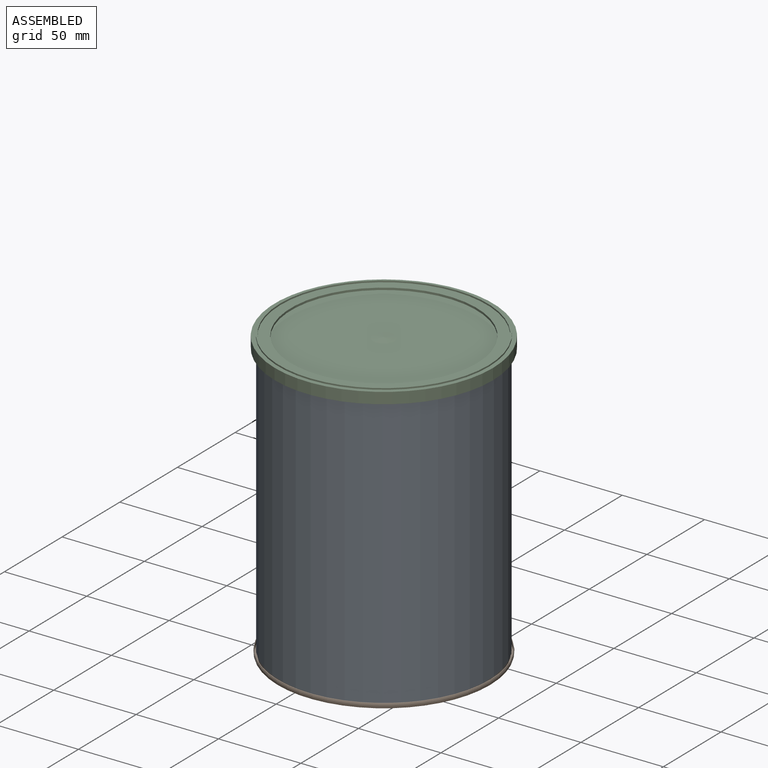
[diagram: assembled view]
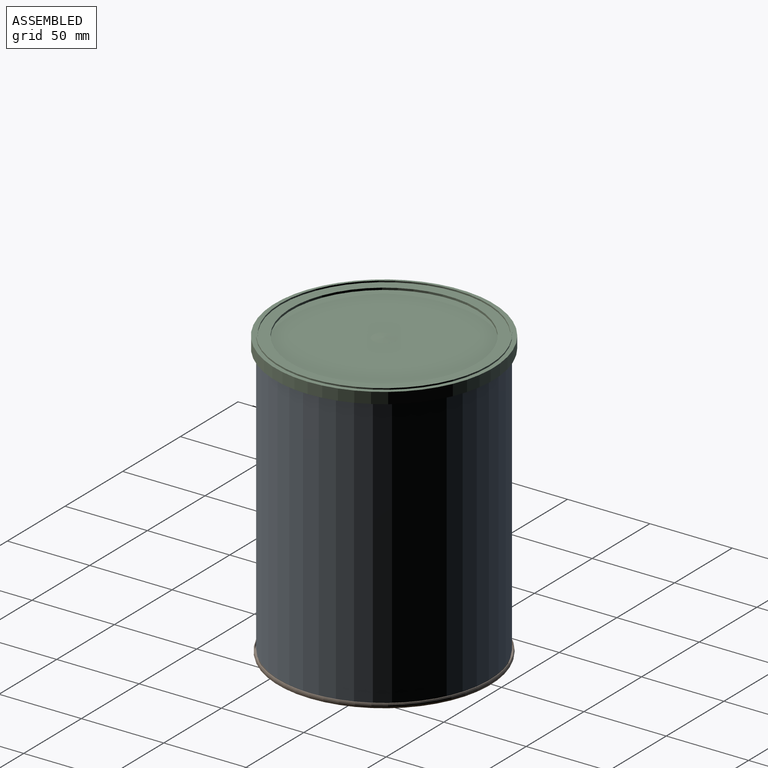
[diagram: assembled view, second angle]
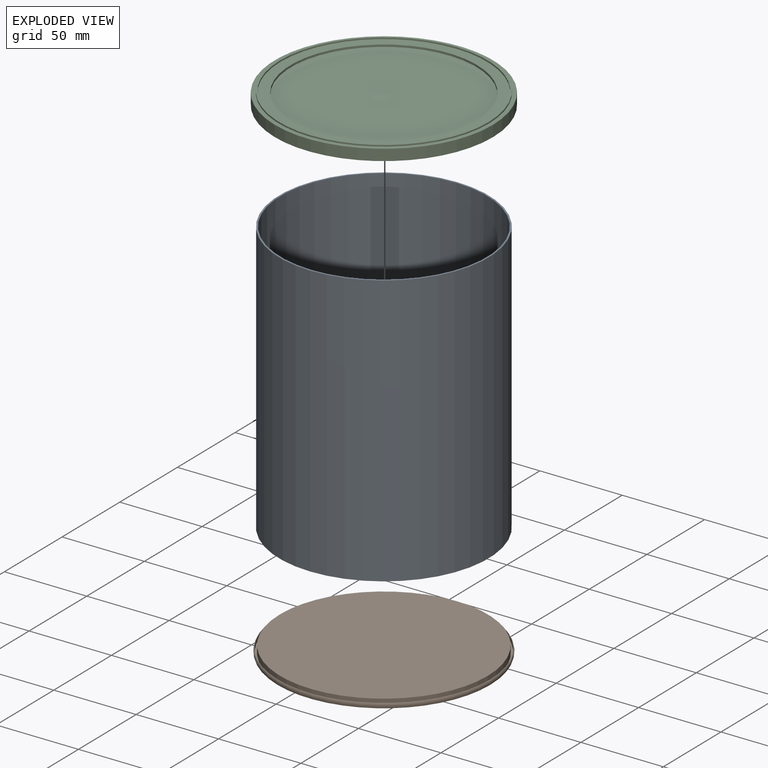
[diagram: exploded view]
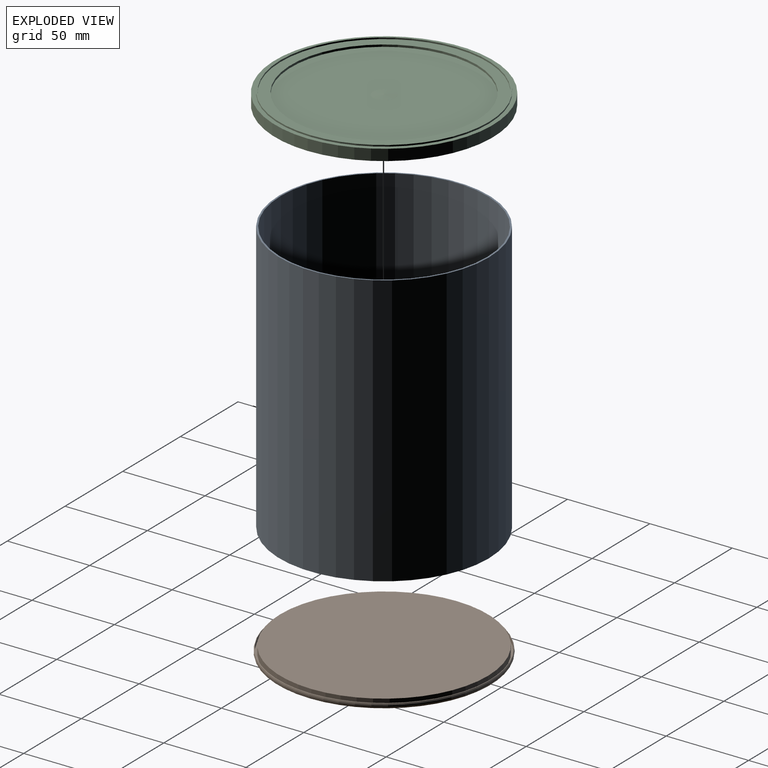
[diagram: exploded view, second angle]
ASSEMBLY  parts=3 mates=2
PART A: 4 faces, bbox 127.3x127.3x165.1 mm
  f0: cylinder r=62.66mm len=165.1mm, axis (0,0,-1), area 65002.5mm2, adj f2,f3
  f1: cylinder r=63.63mm len=165.1mm, axis (0,0,-1), area 66003.7mm2, adj f2,f3
  f2: plane 127.25x127.25mm, normal (0,0,1), area 382.9mm2, adj f0,f1
  f3: plane 127.25x127.25mm, normal (0,0,-1), area 382.9mm2, adj f0,f1
PART B: 12 faces, bbox 140.5x140.5x5 mm
  f0: cylinder r=62.55mm len=125.1mm, axis (0,0,1), area 1222.8mm2, adj f1,f11
  f1: torus R=62.87mm, axis (0,0,1), area 196.4mm2, adj f0,f2
  f2: plane 128.4x128.4mm, normal (0,0,1), area 532.3mm2, adj f1,f3
  f3: torus R=64.2mm, axis (0,0,1), area 323.5mm2, adj f2,f4
  f4: torus R=62.28mm, axis (0,0,1), area 883.5mm2, adj f3,f5
  f5: torus R=64.4mm, axis (0,0,1), area 194.3mm2, adj f4,f6
  f6: plane 128.8x128.8mm, normal (0,0,-1), area 16.7mm2, adj f5,f7
  f7: cylinder r=64.36mm len=128.72mm, axis (0,0,1), area 975.8mm2, adj f6,f8
  f8: plane 128.72x128.72mm, normal (0,0,-1), area 508.5mm2, adj f7,f9
  f9: cylinder r=63.09mm len=126.18mm, axis (0,0,1), area 1661.3mm2, adj f8,f10
  f10: plane 126.18x126.18mm, normal (0,0,-1), area 12504.8mm2, adj f9
  f11: plane 125.1x125.1mm, normal (0,0,1), area 12290.5mm2, adj f0
PART C: 15 faces, bbox 132.5x132.5x7.6 mm
  f0: cylinder r=58.39mm len=116.79mm, axis (0,0,1), area 466mm2, adj f1,f14
  f1: plane 116.79x116.79mm, normal (0,0,-1), area 10569.2mm2, adj f0,f2
  f2: cone r=6.76mm half-angle=85.7deg, axis (0,0,-1), area 143.8mm2, adj f1
  f3: cone r=6.76mm half-angle=85.7deg, axis (0,0,-1), area 143.8mm2, adj f4
  f4: plane 113.08x113.08mm, normal (0,0,1), area 9899.7mm2, adj f3,f5
  f5: cylinder r=56.54mm len=113.08mm, axis (0,0,1), area 451.2mm2, adj f4,f6
  f6: plane 125.78x125.78mm, normal (0,0,1), area 2382.5mm2, adj f5,f7
  f7: cylinder r=62.89mm len=125.78mm, axis (0,0,1), area 351.3mm2, adj f6,f8
  f8: plane 127.41x127.41mm, normal (0,0,1), area 323.3mm2, adj f7,f9
  f9: cylinder r=63.7mm len=127.41mm, axis (0,0,1), area 355.8mm2, adj f8,f10
  f10: plane 132.49x132.49mm, normal (0,0,1), area 1036.9mm2, adj f9,f11
  f11: cylinder r=66.24mm len=132.49mm, axis (0,0,1), area 2812.1mm2, adj f10,f12
  f12: plane 132.49x132.49mm, normal (0,0,-1), area 616.7mm2, adj f11,f13
  f13: cylinder r=64.74mm len=129.49mm, axis (0,0,1), area 2324.9mm2, adj f12,f14
  f14: plane 129.49x129.49mm, normal (0,0,-1), area 2456.5mm2, adj f0,f13
PLACE A rot(axis=(0,0,-1),90deg) t=(-19.62,50.01,-44.49)mm
PLACE B rot(axis=(1,0,0),180deg) t=(-37.8,50.01,-46.59)mm
PLACE C t=(-81.77,50.01,122.22)mm
MATE cylindrical B.f0 <-> A.f1  axis (0,0,-1) through (-19.62,50.01,-44.49)mm
MATE cylindrical C.f0 <-> A.f1  axis (0,0,-1) through (-19.62,50.01,120.61)mm
